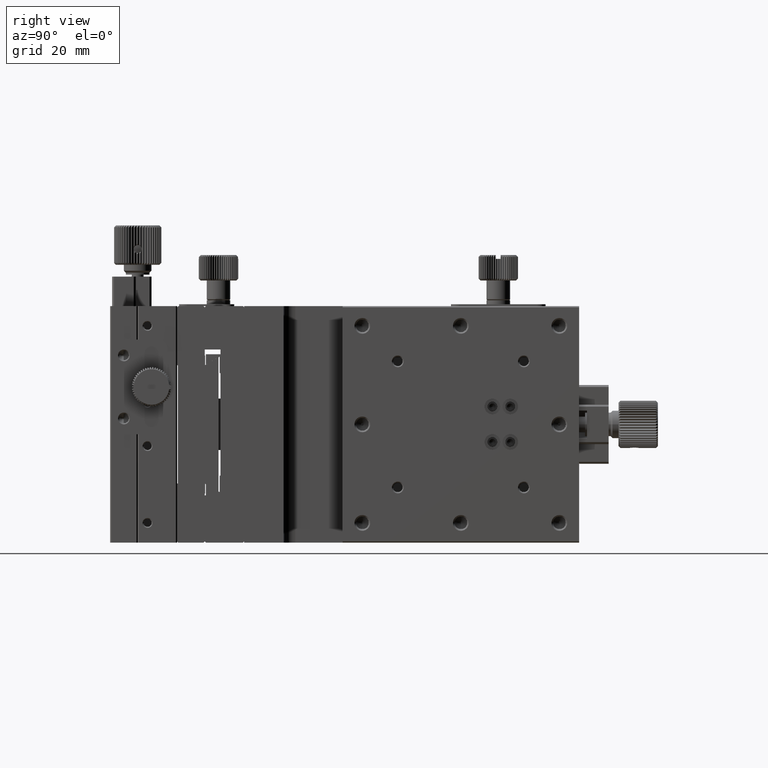
[diagram: clean part render]
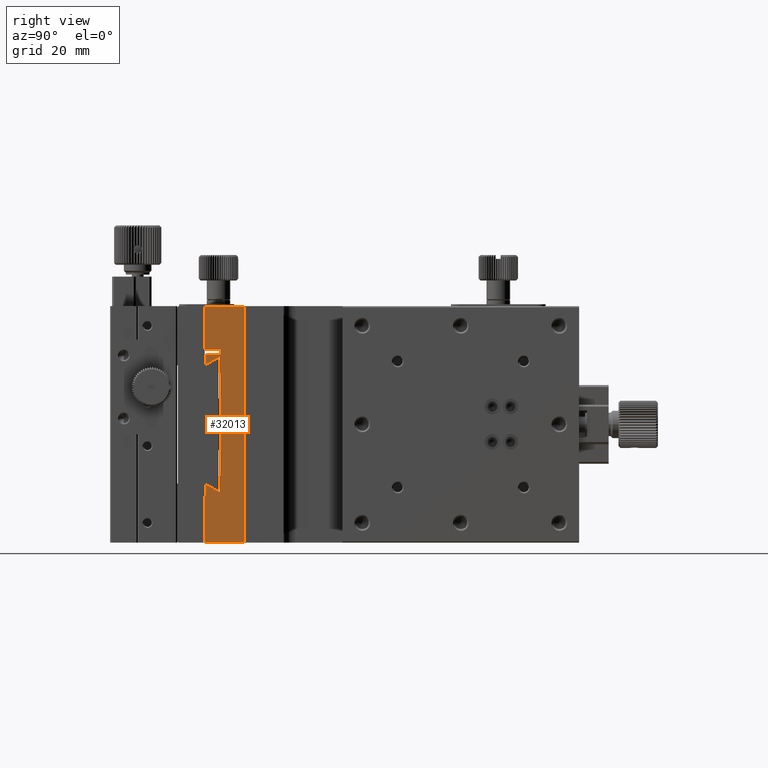
[diagram: same view with one face highlighted and labeled with its STEP entity id]
A machine part, right view. The second image highlights one B-rep face of the part: STEP entity #32013.
In plain terms, the highlighted planar face has unit normal (1, 0, 0).
Its self-contained STEP definition (entity closure, byte-faithful):
#413 = VECTOR ( 'NONE', #51426, 1000.000000000000000 ) ;
#569 = VECTOR ( 'NONE', #10904, 1000.000000000000000 ) ;
#697 = EDGE_CURVE ( 'NONE', #5898, #59186, #35284, .T. ) ;
#1473 = DIRECTION ( 'NONE',  ( -0.000000000000000000, 0.000000000000000000, -1.000000000000000000 ) ) ;
#1593 = VERTEX_POINT ( 'NONE', #46806 ) ;
#1665 = VERTEX_POINT ( 'NONE', #18468 ) ;
#2064 = ORIENTED_EDGE ( 'NONE', *, *, #32606, .T. ) ;
#2280 = CARTESIAN_POINT ( 'NONE',  ( 60.00000000000000000, -6.199999999999990408, -47.19400000000000972 ) ) ;
#3136 = CARTESIAN_POINT ( 'NONE',  ( 60.00000000000000000, -7.327471962526030011E-15, -59.70000000000000284 ) ) ;
#3459 = CARTESIAN_POINT ( 'NONE',  ( 60.00000000000000000, -4.136154119350900809E-15, -0.3000000000000190292 ) ) ;
#3499 = DIRECTION ( 'NONE',  ( -0.000000000000000000, 1.000000000000000000, 0.000000000000000000 ) ) ;
#4455 = VERTEX_POINT ( 'NONE', #49841 ) ;
#4733 = EDGE_CURVE ( 'NONE', #53120, #45009, #53555, .T. ) ;
#4794 = EDGE_CURVE ( 'NONE', #55767, #53120, #10929, .T. ) ;
#4797 = EDGE_CURVE ( 'NONE', #45009, #37571, #26505, .T. ) ;
#4927 = CARTESIAN_POINT ( 'NONE',  ( 60.00000000000000000, -1.359546156209922982E-14, -59.70000000000000284 ) ) ;
#5448 = CARTESIAN_POINT ( 'NONE',  ( 60.00000000000000000, -6.199999999999990408, -47.19400000000001683 ) ) ;
#5672 = EDGE_CURVE ( 'NONE', #33324, #5898, #49001, .T. ) ;
#5750 = ORIENTED_EDGE ( 'NONE', *, *, #55747, .T. ) ;
#5802 = CARTESIAN_POINT ( 'NONE',  ( 60.00000000000000000, -6.000000000000009770, -43.00000000000000000 ) ) ;
#5898 = VERTEX_POINT ( 'NONE', #29090 ) ;
#5962 = DIRECTION ( 'NONE',  ( -0.000000000000000000, 0.7071067811865431318, -0.7071067811865520136 ) ) ;
#6557 = VERTEX_POINT ( 'NONE', #3459 ) ;
#6609 = VECTOR ( 'NONE', #36380, 1000.000000000000000 ) ;
#6884 = DIRECTION ( 'NONE',  ( 0.000000000000000000, 0.000000000000000000, -1.000000000000000000 ) ) ;
#7917 = DIRECTION ( 'NONE',  ( 0.000000000000000000, -1.000000000000000000, -0.000000000000000000 ) ) ;
#9030 = LINE ( 'NONE', #61573, #50228 ) ;
#9221 = ORIENTED_EDGE ( 'NONE', *, *, #4794, .T. ) ;
#9303 = ORIENTED_EDGE ( 'NONE', *, *, #62395, .T. ) ;
#10341 = VERTEX_POINT ( 'NONE', #26834 ) ;
#10461 = CARTESIAN_POINT ( 'NONE',  ( 60.00000000000000000, -6.199999999999993960, -12.80599999999999383 ) ) ;
#10904 = DIRECTION ( 'NONE',  ( -0.000000000000000000, -0.7071067811865470176, 0.7071067811865480168 ) ) ;
#10929 = LINE ( 'NONE', #5802, #42263 ) ;
#11117 = VERTEX_POINT ( 'NONE', #38639 ) ;
#11468 = VERTEX_POINT ( 'NONE', #34099 ) ;
#11574 = LINE ( 'NONE', #16983, #6609 ) ;
#11639 = ORIENTED_EDGE ( 'NONE', *, *, #49823, .T. ) ;
#11730 = CARTESIAN_POINT ( 'NONE',  ( 60.00000000000000000, -6.000000000000005329, -43.00000000000000000 ) ) ;
#12223 = VECTOR ( 'NONE', #61857, 1000.000000000000000 ) ;
#12269 = DIRECTION ( 'NONE',  ( 0.000000000000000000, 0.000000000000000000, -1.000000000000000000 ) ) ;
#12303 = CARTESIAN_POINT ( 'NONE',  ( 60.00000000000000000, -9.699999999999990408, 0.000000000000000000 ) ) ;
#12545 = LINE ( 'NONE', #32616, #39359 ) ;
#12734 = EDGE_LOOP ( 'NONE', ( #31229, #23539, #5750, #19582, #20814, #54503, #59308, #36722, #11639, #19501, #2064, #9303, #15658, #9221, #49945, #35859, #13386, #48842, #28412, #62430, #52140, #43966 ) ) ;
#13386 = ORIENTED_EDGE ( 'NONE', *, *, #60063, .T. ) ;
#15340 = CARTESIAN_POINT ( 'NONE',  ( 60.00000000000000000, -9.699999999999990408, -14.82699999999999996 ) ) ;
#15658 = ORIENTED_EDGE ( 'NONE', *, *, #18916, .T. ) ;
#15835 = LINE ( 'NONE', #54625, #50261 ) ;
#16196 = VECTOR ( 'NONE', #60415, 1000.000000000000000 ) ;
#16534 = LINE ( 'NONE', #20967, #16196 ) ;
#16983 = CARTESIAN_POINT ( 'NONE',  ( 60.00000000000000000, -6.000000000000000000, 0.000000000000000000 ) ) ;
#17401 = VERTEX_POINT ( 'NONE', #15340 ) ;
#17410 = CARTESIAN_POINT ( 'NONE',  ( 60.00000000000000000, -9.700000000000002842, -60.00000000000000000 ) ) ;
#17525 = CARTESIAN_POINT ( 'NONE',  ( 60.00000000000000000, 0.000000000000000000, -12.19999999999999929 ) ) ;
#17623 = CARTESIAN_POINT ( 'NONE',  ( 60.00000000000000000, -9.699999999999990408, -1.302294732002909992E-14 ) ) ;
#17734 = PLANE ( 'NONE',  #42590 ) ;
#17738 = CARTESIAN_POINT ( 'NONE',  ( 60.00000000000000000, -10.00000000000000000, 0.000000000000000000 ) ) ;
#18076 = VERTEX_POINT ( 'NONE', #10461 ) ;
#18112 = EDGE_CURVE ( 'NONE', #11468, #4455, #54334, .T. ) ;
#18468 = CARTESIAN_POINT ( 'NONE',  ( 60.00000000000000000, -6.000000000000000000, -17.00000000000000000 ) ) ;
#18655 = EDGE_CURVE ( 'NONE', #62524, #30502, #9030, .T. ) ;
#18916 = EDGE_CURVE ( 'NONE', #1665, #55767, #11574, .T. ) ;
#19501 = ORIENTED_EDGE ( 'NONE', *, *, #25213, .T. ) ;
#19582 = ORIENTED_EDGE ( 'NONE', *, *, #57924, .T. ) ;
#19971 = VECTOR ( 'NONE', #51150, 1000.000000000000000 ) ;
#20075 = LINE ( 'NONE', #28974, #28193 ) ;
#20814 = ORIENTED_EDGE ( 'NONE', *, *, #18112, .T. ) ;
#20967 = CARTESIAN_POINT ( 'NONE',  ( 60.00000000000000000, 0.000000000000000000, -1.414883835093579973E-14 ) ) ;
#22320 = VECTOR ( 'NONE', #56147, 1000.000000000000000 ) ;
#22470 = EDGE_CURVE ( 'NONE', #59186, #62524, #31263, .T. ) ;
#22698 = EDGE_CURVE ( 'NONE', #4455, #43742, #20075, .T. ) ;
#23049 = DIRECTION ( 'NONE',  ( 0.000000000000000000, 0.7071067811865699992, 0.7071067811865251462 ) ) ;
#23539 = ORIENTED_EDGE ( 'NONE', *, *, #52856, .T. ) ;
#23648 = VECTOR ( 'NONE', #5962, 999.9999999999998863 ) ;
#24031 = EDGE_CURVE ( 'NONE', #30502, #6557, #28300, .T. ) ;
#25213 = EDGE_CURVE ( 'NONE', #17401, #18076, #46796, .T. ) ;
#26505 = LINE ( 'NONE', #2280, #30104 ) ;
#26834 = CARTESIAN_POINT ( 'NONE',  ( 60.00000000000000000, -6.199999999999990408, -17.00000000000000000 ) ) ;
#27901 = VECTOR ( 'NONE', #7917, 1000.000000000000000 ) ;
#27988 = CARTESIAN_POINT ( 'NONE',  ( 60.00000000000000000, -9.699999999999990408, -14.82699999999999996 ) ) ;
#28193 = VECTOR ( 'NONE', #49058, 1000.000000000000000 ) ;
#28300 = LINE ( 'NONE', #3136, #36461 ) ;
#28412 = ORIENTED_EDGE ( 'NONE', *, *, #5672, .T. ) ;
#28974 = CARTESIAN_POINT ( 'NONE',  ( 60.00000000000000000, 0.000000000000000000, -11.00000000000000000 ) ) ;
#29090 = CARTESIAN_POINT ( 'NONE',  ( 60.00000000000000000, -10.00000000000000000, -59.70000000000000284 ) ) ;
#29476 = CARTESIAN_POINT ( 'NONE',  ( 60.00000000000000000, -9.699999999999990408, 0.000000000000000000 ) ) ;
#30104 = VECTOR ( 'NONE', #55130, 1000.000000000000114 ) ;
#30502 = VERTEX_POINT ( 'NONE', #4927 ) ;
#30819 = FACE_OUTER_BOUND ( 'NONE', #12734, .T. ) ;
#31229 = ORIENTED_EDGE ( 'NONE', *, *, #24031, .T. ) ;
#31263 = LINE ( 'NONE', #61791, #33296 ) ;
#31733 = LINE ( 'NONE', #12303, #413 ) ;
#32013 = ADVANCED_FACE ( 'NONE', ( #30819 ), #17734, .T. ) ;
#32606 = EDGE_CURVE ( 'NONE', #18076, #10341, #49694, .T. ) ;
#32616 = CARTESIAN_POINT ( 'NONE',  ( 60.00000000000000000, -6.199999999999990408, -17.00000000000000000 ) ) ;
#32650 = CARTESIAN_POINT ( 'NONE',  ( 60.00000000000000000, -9.699999999999990408, -48.00000000000000000 ) ) ;
#33296 = VECTOR ( 'NONE', #3499, 1000.000000000000000 ) ;
#33324 = VERTEX_POINT ( 'NONE', #56519 ) ;
#34099 = CARTESIAN_POINT ( 'NONE',  ( 60.00000000000000000, -10.00000000000000000, -0.3000000000000235811 ) ) ;
#35029 = CARTESIAN_POINT ( 'NONE',  ( 60.00000000000000000, -6.000000000000000000, -11.00000000000000000 ) ) ;
#35099 = LINE ( 'NONE', #54475, #569 ) ;
#35284 = LINE ( 'NONE', #37074, #23648 ) ;
#35859 = ORIENTED_EDGE ( 'NONE', *, *, #4797, .T. ) ;
#36380 = DIRECTION ( 'NONE',  ( 0.000000000000000000, 0.000000000000000000, -1.000000000000000000 ) ) ;
#36461 = VECTOR ( 'NONE', #38150, 1000.000000000000000 ) ;
#36722 = ORIENTED_EDGE ( 'NONE', *, *, #50474, .T. ) ;
#36992 = VERTEX_POINT ( 'NONE', #38075 ) ;
#37074 = CARTESIAN_POINT ( 'NONE',  ( 60.00000000000000000, -10.00000000000000000, -59.70000000000000284 ) ) ;
#37078 = LINE ( 'NONE', #32650, #22320 ) ;
#37571 = VERTEX_POINT ( 'NONE', #55053 ) ;
#38075 = CARTESIAN_POINT ( 'NONE',  ( 60.00000000000000000, -9.699999999999990408, -48.00000000000000000 ) ) ;
#38150 = DIRECTION ( 'NONE',  ( -0.000000000000000000, 1.227396053628219999E-16, 1.000000000000000000 ) ) ;
#38639 = CARTESIAN_POINT ( 'NONE',  ( 60.00000000000000000, -0.3000000000000109801, -1.423177981713095502E-14 ) ) ;
#39359 = VECTOR ( 'NONE', #52291, 1000.000000000000000 ) ;
#39827 = DIRECTION ( 'NONE',  ( 0.000000000000000000, 0.000000000000000000, -1.000000000000000000 ) ) ;
#40251 = CARTESIAN_POINT ( 'NONE',  ( 60.00000000000000000, -9.699999999999990408, -12.19999999999999929 ) ) ;
#41009 = CARTESIAN_POINT ( 'NONE',  ( 60.00000000000000000, -6.199999999999990408, -43.00000000000000000 ) ) ;
#42263 = VECTOR ( 'NONE', #59613, 1000.000000000000000 ) ;
#42409 = VECTOR ( 'NONE', #12269, 1000.000000000000000 ) ;
#42425 = LINE ( 'NONE', #17623, #12223 ) ;
#42590 = AXIS2_PLACEMENT_3D ( 'NONE', #46376, #55582, #6884 ) ;
#42765 = CARTESIAN_POINT ( 'NONE',  ( 60.00000000000000000, -0.3000000000000202505, -60.00000000000000000 ) ) ;
#43267 = VECTOR ( 'NONE', #47884, 1000.000000000000000 ) ;
#43742 = VERTEX_POINT ( 'NONE', #35029 ) ;
#43917 = VECTOR ( 'NONE', #47416, 1000.000000000000114 ) ;
#43966 = ORIENTED_EDGE ( 'NONE', *, *, #18655, .T. ) ;
#44417 = LINE ( 'NONE', #29476, #46991 ) ;
#44832 = CARTESIAN_POINT ( 'NONE',  ( 60.00000000000000000, -10.00000000000000000, 0.000000000000000000 ) ) ;
#45009 = VERTEX_POINT ( 'NONE', #5448 ) ;
#45804 = EDGE_CURVE ( 'NONE', #36992, #33324, #37078, .T. ) ;
#46376 = CARTESIAN_POINT ( 'NONE',  ( 60.00000000000000000, 0.000000000000000000, 0.000000000000000000 ) ) ;
#46796 = LINE ( 'NONE', #27988, #43917 ) ;
#46806 = CARTESIAN_POINT ( 'NONE',  ( 60.00000000000000000, -6.000000000000000000, -12.19999999999999929 ) ) ;
#46991 = VECTOR ( 'NONE', #59064, 1000.000000000000000 ) ;
#47416 = DIRECTION ( 'NONE',  ( 0.000000000000000000, 0.8659960399471574588, 0.5000508562094871934 ) ) ;
#47884 = DIRECTION ( 'NONE',  ( 0.000000000000000000, 0.000000000000000000, -1.000000000000000000 ) ) ;
#48842 = ORIENTED_EDGE ( 'NONE', *, *, #45804, .T. ) ;
#49001 = LINE ( 'NONE', #44832, #42409 ) ;
#49058 = DIRECTION ( 'NONE',  ( -0.000000000000000000, 1.000000000000000000, 0.000000000000000000 ) ) ;
#49694 = LINE ( 'NONE', #60182, #52682 ) ;
#49823 = EDGE_CURVE ( 'NONE', #55007, #17401, #31733, .T. ) ;
#49841 = CARTESIAN_POINT ( 'NONE',  ( 60.00000000000000000, -10.00000000000000178, -11.00000000000000000 ) ) ;
#49945 = ORIENTED_EDGE ( 'NONE', *, *, #4733, .T. ) ;
#50228 = VECTOR ( 'NONE', #23049, 1000.000000000000000 ) ;
#50261 = VECTOR ( 'NONE', #1473, 1000.000000000000000 ) ;
#50474 = EDGE_CURVE ( 'NONE', #1593, #55007, #60484, .T. ) ;
#51150 = DIRECTION ( 'NONE',  ( 0.000000000000000000, 0.000000000000000000, -1.000000000000000000 ) ) ;
#51426 = DIRECTION ( 'NONE',  ( 0.000000000000000000, 0.000000000000000000, -1.000000000000000000 ) ) ;
#52140 = ORIENTED_EDGE ( 'NONE', *, *, #22470, .T. ) ;
#52291 = DIRECTION ( 'NONE',  ( -0.000000000000000000, 1.000000000000000000, 0.000000000000000000 ) ) ;
#52682 = VECTOR ( 'NONE', #39827, 1000.000000000000000 ) ;
#52856 = EDGE_CURVE ( 'NONE', #6557, #11117, #35099, .T. ) ;
#53120 = VERTEX_POINT ( 'NONE', #41009 ) ;
#53555 = LINE ( 'NONE', #62840, #43267 ) ;
#54334 = LINE ( 'NONE', #17738, #19971 ) ;
#54475 = CARTESIAN_POINT ( 'NONE',  ( 60.00000000000000000, -3.673940397442240073E-17, -0.3000000000000260236 ) ) ;
#54501 = VERTEX_POINT ( 'NONE', #57838 ) ;
#54503 = ORIENTED_EDGE ( 'NONE', *, *, #22698, .T. ) ;
#54625 = CARTESIAN_POINT ( 'NONE',  ( 60.00000000000000000, -6.000000000000000000, -11.00000000000000000 ) ) ;
#55007 = VERTEX_POINT ( 'NONE', #40251 ) ;
#55053 = CARTESIAN_POINT ( 'NONE',  ( 60.00000000000000000, -9.699999999999993960, -45.17300000000000892 ) ) ;
#55130 = DIRECTION ( 'NONE',  ( 0.000000000000000000, -0.8659960399471572368, 0.5000508562094875264 ) ) ;
#55582 = DIRECTION ( 'NONE',  ( 1.000000000000000000, 0.000000000000000000, 0.000000000000000000 ) ) ;
#55747 = EDGE_CURVE ( 'NONE', #11117, #54501, #16534, .T. ) ;
#55767 = VERTEX_POINT ( 'NONE', #11730 ) ;
#56147 = DIRECTION ( 'NONE',  ( -0.000000000000000000, -1.000000000000000000, -0.000000000000000000 ) ) ;
#56519 = CARTESIAN_POINT ( 'NONE',  ( 60.00000000000000000, -10.00000000000000000, -48.00000000000000000 ) ) ;
#57838 = CARTESIAN_POINT ( 'NONE',  ( 60.00000000000000000, -9.699999999999990408, -1.323405188832408730E-14 ) ) ;
#57924 = EDGE_CURVE ( 'NONE', #54501, #11468, #42425, .T. ) ;
#59064 = DIRECTION ( 'NONE',  ( 0.000000000000000000, 0.000000000000000000, -1.000000000000000000 ) ) ;
#59186 = VERTEX_POINT ( 'NONE', #17410 ) ;
#59308 = ORIENTED_EDGE ( 'NONE', *, *, #60688, .T. ) ;
#59613 = DIRECTION ( 'NONE',  ( -0.000000000000000000, -1.000000000000000000, -0.000000000000000000 ) ) ;
#60063 = EDGE_CURVE ( 'NONE', #37571, #36992, #44417, .T. ) ;
#60182 = CARTESIAN_POINT ( 'NONE',  ( 60.00000000000000000, -6.199999999999990408, 0.000000000000000000 ) ) ;
#60415 = DIRECTION ( 'NONE',  ( 0.000000000000000000, -1.000000000000000000, -0.000000000000000000 ) ) ;
#60484 = LINE ( 'NONE', #17525, #27901 ) ;
#60688 = EDGE_CURVE ( 'NONE', #43742, #1593, #15835, .T. ) ;
#61573 = CARTESIAN_POINT ( 'NONE',  ( 60.00000000000000000, -0.3000000000000210276, -60.00000000000000000 ) ) ;
#61791 = CARTESIAN_POINT ( 'NONE',  ( 60.00000000000000000, 0.000000000000000000, -60.00000000000000000 ) ) ;
#61857 = DIRECTION ( 'NONE',  ( -0.000000000000000000, -0.7071067811865480168, -0.7071067811865470176 ) ) ;
#62395 = EDGE_CURVE ( 'NONE', #10341, #1665, #12545, .T. ) ;
#62430 = ORIENTED_EDGE ( 'NONE', *, *, #697, .T. ) ;
#62524 = VERTEX_POINT ( 'NONE', #42765 ) ;
#62840 = CARTESIAN_POINT ( 'NONE',  ( 60.00000000000000000, -6.199999999999990408, 0.000000000000000000 ) ) ;